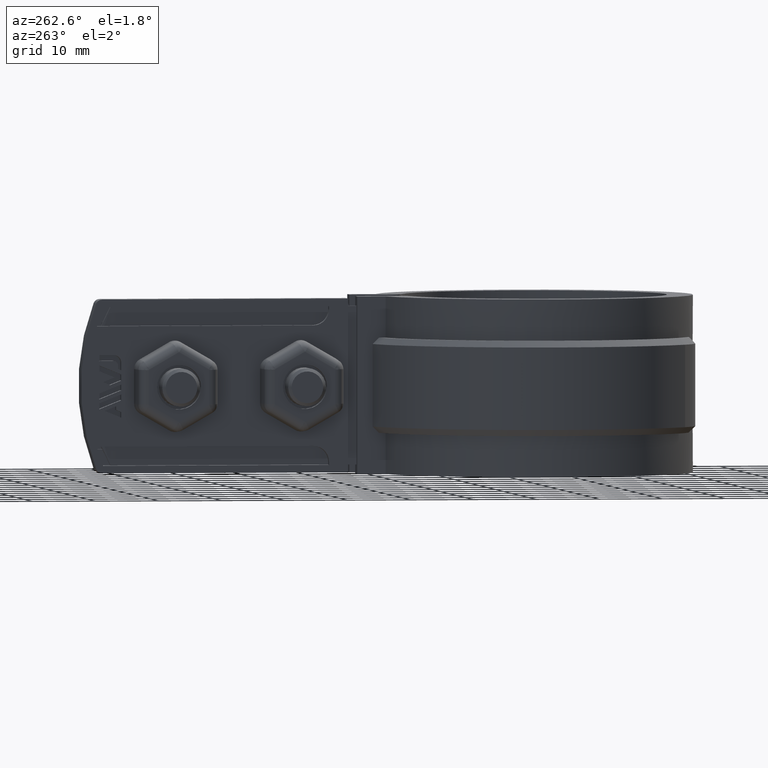
[diagram: clean part render]
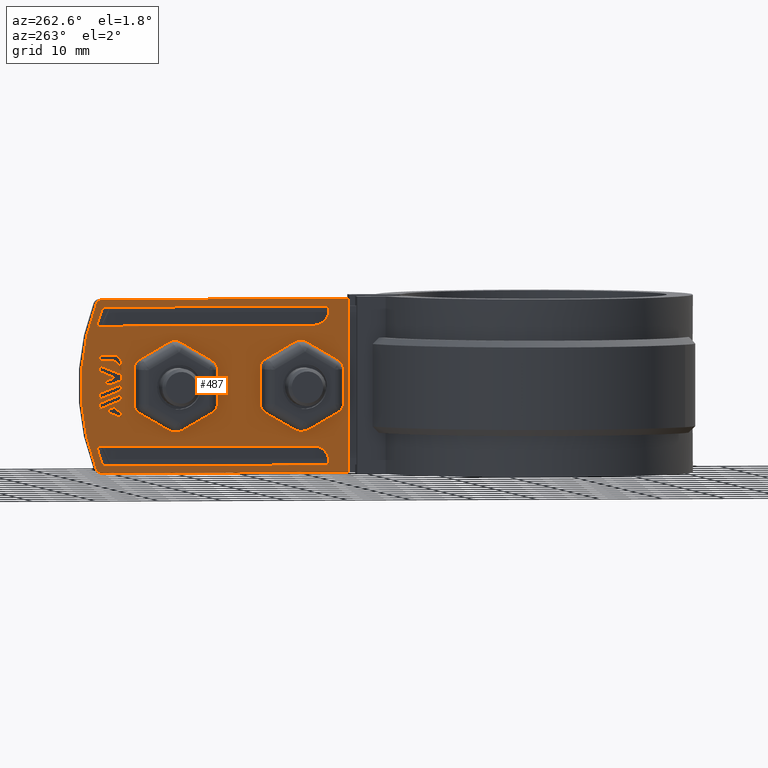
[diagram: same view with one face highlighted and labeled with its STEP entity id]
A machine part, auxiliary view. The second image highlights one B-rep face of the part: STEP entity #487.
In plain terms, the highlighted planar face has unit normal (-1, 0, -0).
Its self-contained STEP definition (entity closure, byte-faithful):
#487 = ADVANCED_FACE( '', ( #970, #971, #972, #973, #974, #975, #976, #977, #978, #979 ), #980, .T. );
#970 = FACE_BOUND( '', #2094, .T. );
#971 = FACE_BOUND( '', #2095, .T. );
#972 = FACE_BOUND( '', #2096, .T. );
#973 = FACE_BOUND( '', #2097, .T. );
#974 = FACE_BOUND( '', #2098, .T. );
#975 = FACE_OUTER_BOUND( '', #2099, .T. );
#976 = FACE_BOUND( '', #2100, .T. );
#977 = FACE_BOUND( '', #2101, .T. );
#978 = FACE_BOUND( '', #2102, .T. );
#979 = FACE_BOUND( '', #2103, .T. );
#980 = PLANE( '', #2104 );
#2094 = EDGE_LOOP( '', ( #4596, #4597, #4598, #4599, #4600 ) );
#2095 = EDGE_LOOP( '', ( #4601, #4602, #4603, #4604 ) );
#2096 = EDGE_LOOP( '', ( #4605, #4606, #4607, #4608, #4609 ) );
#2097 = EDGE_LOOP( '', ( #4610, #4611, #4612, #4613, #4614, #4615, #4616, #4617, #4618, #4619, #4620, #4621 ) );
#2098 = EDGE_LOOP( '', ( #4622, #4623, #4624, #4625, #4626, #4627, #4628, #4629, #4630, #4631, #4632, #4633 ) );
#2099 = EDGE_LOOP( '', ( #4634, #4635, #4636, #4637, #4638, #4639 ) );
#2100 = EDGE_LOOP( '', ( #4640, #4641, #4642, #4643, #4644 ) );
#2101 = EDGE_LOOP( '', ( #4645, #4646, #4647, #4648, #4649, #4650, #4651, #4652, #4653, #4654, #4655, #4656, #4657, #4658, #4659, #4660, #4661, #4662, #4663, #4664, #4665, #4666, #4667, #4668, #4669, #4670, #4671, #4672, #4673, #4674, #4675, #4676, #4677, #4678, #4679, #4680, #4681, #4682, #4683, #4684 ) );
#2102 = EDGE_LOOP( '', ( #4685, #4686, #4687, #4688, #4689, #4690, #4691 ) );
#2103 = EDGE_LOOP( '', ( #4692, #4693, #4694, #4695 ) );
#2104 = AXIS2_PLACEMENT_3D( '', #4696, #4697, #4698 );
#4596 = ORIENTED_EDGE( '', *, *, #6708, .T. );
#4597 = ORIENTED_EDGE( '', *, *, #6709, .T. );
#4598 = ORIENTED_EDGE( '', *, *, #6710, .T. );
#4599 = ORIENTED_EDGE( '', *, *, #6711, .T. );
#4600 = ORIENTED_EDGE( '', *, *, #6712, .T. );
#4601 = ORIENTED_EDGE( '', *, *, #6713, .T. );
#4602 = ORIENTED_EDGE( '', *, *, #6714, .T. );
#4603 = ORIENTED_EDGE( '', *, *, #6715, .T. );
#4604 = ORIENTED_EDGE( '', *, *, #6716, .T. );
#4605 = ORIENTED_EDGE( '', *, *, #6717, .T. );
#4606 = ORIENTED_EDGE( '', *, *, #6718, .F. );
#4607 = ORIENTED_EDGE( '', *, *, #6719, .T. );
#4608 = ORIENTED_EDGE( '', *, *, #6720, .T. );
#4609 = ORIENTED_EDGE( '', *, *, #6721, .T. );
#4610 = ORIENTED_EDGE( '', *, *, #6722, .F. );
#4611 = ORIENTED_EDGE( '', *, *, #6723, .F. );
#4612 = ORIENTED_EDGE( '', *, *, #6724, .F. );
#4613 = ORIENTED_EDGE( '', *, *, #6725, .F. );
#4614 = ORIENTED_EDGE( '', *, *, #6726, .F. );
#4615 = ORIENTED_EDGE( '', *, *, #6727, .F. );
#4616 = ORIENTED_EDGE( '', *, *, #6728, .F. );
#4617 = ORIENTED_EDGE( '', *, *, #6729, .F. );
#4618 = ORIENTED_EDGE( '', *, *, #6730, .F. );
#4619 = ORIENTED_EDGE( '', *, *, #6731, .F. );
#4620 = ORIENTED_EDGE( '', *, *, #6732, .F. );
#4621 = ORIENTED_EDGE( '', *, *, #6733, .F. );
#4622 = ORIENTED_EDGE( '', *, *, #6734, .F. );
#4623 = ORIENTED_EDGE( '', *, *, #6735, .F. );
#4624 = ORIENTED_EDGE( '', *, *, #6736, .F. );
#4625 = ORIENTED_EDGE( '', *, *, #6737, .F. );
#4626 = ORIENTED_EDGE( '', *, *, #6738, .F. );
#4627 = ORIENTED_EDGE( '', *, *, #6739, .F. );
#4628 = ORIENTED_EDGE( '', *, *, #6740, .F. );
#4629 = ORIENTED_EDGE( '', *, *, #6741, .F. );
#4630 = ORIENTED_EDGE( '', *, *, #6742, .F. );
#4631 = ORIENTED_EDGE( '', *, *, #6743, .F. );
#4632 = ORIENTED_EDGE( '', *, *, #6744, .F. );
#4633 = ORIENTED_EDGE( '', *, *, #6745, .F. );
#4634 = ORIENTED_EDGE( '', *, *, #6746, .T. );
#4635 = ORIENTED_EDGE( '', *, *, #6747, .T. );
#4636 = ORIENTED_EDGE( '', *, *, #6748, .T. );
#4637 = ORIENTED_EDGE( '', *, *, #6749, .T. );
#4638 = ORIENTED_EDGE( '', *, *, #6750, .T. );
#4639 = ORIENTED_EDGE( '', *, *, #6751, .T. );
#4640 = ORIENTED_EDGE( '', *, *, #6752, .T. );
#4641 = ORIENTED_EDGE( '', *, *, #6753, .T. );
#4642 = ORIENTED_EDGE( '', *, *, #6754, .T. );
#4643 = ORIENTED_EDGE( '', *, *, #6755, .T. );
#4644 = ORIENTED_EDGE( '', *, *, #6756, .F. );
#4645 = ORIENTED_EDGE( '', *, *, #6757, .T. );
#4646 = ORIENTED_EDGE( '', *, *, #6758, .T. );
#4647 = ORIENTED_EDGE( '', *, *, #6759, .T. );
#4648 = ORIENTED_EDGE( '', *, *, #6760, .T. );
#4649 = ORIENTED_EDGE( '', *, *, #6761, .T. );
#4650 = ORIENTED_EDGE( '', *, *, #6762, .T. );
#4651 = ORIENTED_EDGE( '', *, *, #6763, .T. );
#4652 = ORIENTED_EDGE( '', *, *, #6764, .T. );
#4653 = ORIENTED_EDGE( '', *, *, #6765, .T. );
#4654 = ORIENTED_EDGE( '', *, *, #6766, .T. );
#4655 = ORIENTED_EDGE( '', *, *, #6767, .T. );
#4656 = ORIENTED_EDGE( '', *, *, #6768, .T. );
#4657 = ORIENTED_EDGE( '', *, *, #6769, .T. );
#4658 = ORIENTED_EDGE( '', *, *, #6770, .T. );
#4659 = ORIENTED_EDGE( '', *, *, #6771, .T. );
#4660 = ORIENTED_EDGE( '', *, *, #6772, .T. );
#4661 = ORIENTED_EDGE( '', *, *, #6773, .T. );
#4662 = ORIENTED_EDGE( '', *, *, #6774, .T. );
#4663 = ORIENTED_EDGE( '', *, *, #6775, .T. );
#4664 = ORIENTED_EDGE( '', *, *, #6776, .T. );
#4665 = ORIENTED_EDGE( '', *, *, #6777, .T. );
#4666 = ORIENTED_EDGE( '', *, *, #6778, .T. );
#4667 = ORIENTED_EDGE( '', *, *, #6779, .T. );
#4668 = ORIENTED_EDGE( '', *, *, #6780, .T. );
#4669 = ORIENTED_EDGE( '', *, *, #6781, .T. );
#4670 = ORIENTED_EDGE( '', *, *, #6782, .T. );
#4671 = ORIENTED_EDGE( '', *, *, #6783, .T. );
#4672 = ORIENTED_EDGE( '', *, *, #6784, .T. );
#4673 = ORIENTED_EDGE( '', *, *, #6785, .T. );
#4674 = ORIENTED_EDGE( '', *, *, #6786, .T. );
#4675 = ORIENTED_EDGE( '', *, *, #6787, .T. );
#4676 = ORIENTED_EDGE( '', *, *, #6788, .T. );
#4677 = ORIENTED_EDGE( '', *, *, #6789, .T. );
#4678 = ORIENTED_EDGE( '', *, *, #6790, .T. );
#4679 = ORIENTED_EDGE( '', *, *, #6791, .T. );
#4680 = ORIENTED_EDGE( '', *, *, #6792, .T. );
#4681 = ORIENTED_EDGE( '', *, *, #6793, .T. );
#4682 = ORIENTED_EDGE( '', *, *, #6794, .T. );
#4683 = ORIENTED_EDGE( '', *, *, #6795, .T. );
#4684 = ORIENTED_EDGE( '', *, *, #6796, .T. );
#4685 = ORIENTED_EDGE( '', *, *, #6797, .T. );
#4686 = ORIENTED_EDGE( '', *, *, #6798, .T. );
#4687 = ORIENTED_EDGE( '', *, *, #6799, .T. );
#4688 = ORIENTED_EDGE( '', *, *, #6800, .T. );
#4689 = ORIENTED_EDGE( '', *, *, #6801, .T. );
#4690 = ORIENTED_EDGE( '', *, *, #6802, .T. );
#4691 = ORIENTED_EDGE( '', *, *, #6803, .T. );
#4692 = ORIENTED_EDGE( '', *, *, #6804, .T. );
#4693 = ORIENTED_EDGE( '', *, *, #6805, .T. );
#4694 = ORIENTED_EDGE( '', *, *, #6806, .T. );
#4695 = ORIENTED_EDGE( '', *, *, #6807, .T. );
#4696 = CARTESIAN_POINT( '', ( -6.69999999999994, 36.3954076850713, -12.5000000000053 ) );
#4697 = DIRECTION( '', ( -1.00000000000000, 6.81102793110547E-016, -3.55799675438348E-016 ) );
#4698 = DIRECTION( '', ( 6.81102793110547E-016, 1.00000000000000, 1.97370347591844E-018 ) );
#6708 = EDGE_CURVE( '', #7872, #7873, #7874, .T. );
#6709 = EDGE_CURVE( '', #7873, #7875, #7876, .T. );
#6710 = EDGE_CURVE( '', #7875, #7877, #7878, .T. );
#6711 = EDGE_CURVE( '', #7877, #7879, #7880, .T. );
#6712 = EDGE_CURVE( '', #7879, #7872, #7881, .T. );
#6713 = EDGE_CURVE( '', #7882, #7883, #7884, .T. );
#6714 = EDGE_CURVE( '', #7883, #7885, #7886, .T. );
#6715 = EDGE_CURVE( '', #7885, #7887, #7888, .T. );
#6716 = EDGE_CURVE( '', #7887, #7882, #7889, .T. );
#6717 = EDGE_CURVE( '', #7890, #7891, #7892, .F. );
#6718 = EDGE_CURVE( '', #7893, #7891, #7894, .T. );
#6719 = EDGE_CURVE( '', #7893, #7895, #7896, .T. );
#6720 = EDGE_CURVE( '', #7895, #7897, #7898, .T. );
#6721 = EDGE_CURVE( '', #7897, #7890, #7899, .T. );
#6722 = EDGE_CURVE( '', #7900, #7901, #7902, .F. );
#6723 = EDGE_CURVE( '', #7903, #7900, #7904, .T. );
#6724 = EDGE_CURVE( '', #7905, #7903, #7906, .F. );
#6725 = EDGE_CURVE( '', #7907, #7905, #7908, .T. );
#6726 = EDGE_CURVE( '', #7909, #7907, #7910, .F. );
#6727 = EDGE_CURVE( '', #7911, #7909, #7912, .T. );
#6728 = EDGE_CURVE( '', #7913, #7911, #7914, .F. );
#6729 = EDGE_CURVE( '', #7915, #7913, #7916, .T. );
#6730 = EDGE_CURVE( '', #7917, #7915, #7918, .F. );
#6731 = EDGE_CURVE( '', #7919, #7917, #7920, .T. );
#6732 = EDGE_CURVE( '', #7921, #7919, #7922, .F. );
#6733 = EDGE_CURVE( '', #7901, #7921, #7923, .T. );
#6734 = EDGE_CURVE( '', #7924, #7925, #7926, .F. );
#6735 = EDGE_CURVE( '', #7927, #7924, #7928, .T. );
#6736 = EDGE_CURVE( '', #7929, #7927, #7930, .F. );
#6737 = EDGE_CURVE( '', #7931, #7929, #7932, .T. );
#6738 = EDGE_CURVE( '', #7933, #7931, #7934, .F. );
#6739 = EDGE_CURVE( '', #7935, #7933, #7936, .T. );
#6740 = EDGE_CURVE( '', #7937, #7935, #7938, .F. );
#6741 = EDGE_CURVE( '', #7939, #7937, #7940, .T. );
#6742 = EDGE_CURVE( '', #7941, #7939, #7942, .F. );
#6743 = EDGE_CURVE( '', #7943, #7941, #7944, .T. );
#6744 = EDGE_CURVE( '', #7945, #7943, #7946, .F. );
#6745 = EDGE_CURVE( '', #7925, #7945, #7947, .T. );
#6746 = EDGE_CURVE( '', #7948, #7949, #7950, .T. );
#6747 = EDGE_CURVE( '', #7949, #7951, #7952, .T. );
#6748 = EDGE_CURVE( '', #7951, #7953, #7954, .T. );
#6749 = EDGE_CURVE( '', #7953, #7955, #7956, .T. );
#6750 = EDGE_CURVE( '', #7955, #7957, #7958, .T. );
#6751 = EDGE_CURVE( '', #7957, #7948, #7959, .T. );
#6752 = EDGE_CURVE( '', #7960, #7961, #7962, .F. );
#6753 = EDGE_CURVE( '', #7961, #7963, #7964, .T. );
#6754 = EDGE_CURVE( '', #7963, #7965, #7966, .T. );
#6755 = EDGE_CURVE( '', #7965, #7967, #7968, .T. );
#6756 = EDGE_CURVE( '', #7960, #7967, #7969, .T. );
#6757 = EDGE_CURVE( '', #7970, #7971, #7972, .T. );
#6758 = EDGE_CURVE( '', #7971, #7973, #7974, .T. );
#6759 = EDGE_CURVE( '', #7973, #7975, #7976, .T. );
#6760 = EDGE_CURVE( '', #7975, #7977, #7978, .T. );
#6761 = EDGE_CURVE( '', #7977, #7979, #7980, .T. );
#6762 = EDGE_CURVE( '', #7979, #7981, #7982, .T. );
#6763 = EDGE_CURVE( '', #7981, #7983, #7984, .T. );
#6764 = EDGE_CURVE( '', #7983, #7985, #7986, .T. );
#6765 = EDGE_CURVE( '', #7985, #7987, #7988, .T. );
#6766 = EDGE_CURVE( '', #7987, #7989, #7990, .T. );
#6767 = EDGE_CURVE( '', #7989, #7991, #7992, .T. );
#6768 = EDGE_CURVE( '', #7991, #7993, #7994, .T. );
#6769 = EDGE_CURVE( '', #7993, #7995, #7996, .T. );
#6770 = EDGE_CURVE( '', #7995, #7997, #7998, .T. );
#6771 = EDGE_CURVE( '', #7997, #7999, #8000, .T. );
#6772 = EDGE_CURVE( '', #7999, #8001, #8002, .T. );
#6773 = EDGE_CURVE( '', #8001, #8003, #8004, .T. );
#6774 = EDGE_CURVE( '', #8003, #8005, #8006, .T. );
#6775 = EDGE_CURVE( '', #8005, #8007, #8008, .T. );
#6776 = EDGE_CURVE( '', #8007, #8009, #8010, .T. );
#6777 = EDGE_CURVE( '', #8009, #8011, #8012, .T. );
#6778 = EDGE_CURVE( '', #8011, #8013, #8014, .T. );
#6779 = EDGE_CURVE( '', #8013, #8015, #8016, .T. );
#6780 = EDGE_CURVE( '', #8015, #8017, #8018, .T. );
#6781 = EDGE_CURVE( '', #8017, #8019, #8020, .T. );
#6782 = EDGE_CURVE( '', #8019, #8021, #8022, .T. );
#6783 = EDGE_CURVE( '', #8021, #8023, #8024, .T. );
#6784 = EDGE_CURVE( '', #8023, #8025, #8026, .T. );
#6785 = EDGE_CURVE( '', #8025, #8027, #8028, .T. );
#6786 = EDGE_CURVE( '', #8027, #8029, #8030, .T. );
#6787 = EDGE_CURVE( '', #8029, #8031, #8032, .T. );
#6788 = EDGE_CURVE( '', #8031, #8033, #8034, .T. );
#6789 = EDGE_CURVE( '', #8033, #8035, #8036, .T. );
#6790 = EDGE_CURVE( '', #8035, #8037, #8038, .T. );
#6791 = EDGE_CURVE( '', #8037, #8039, #8040, .T. );
#6792 = EDGE_CURVE( '', #8039, #8041, #8042, .T. );
#6793 = EDGE_CURVE( '', #8041, #8043, #8044, .T. );
#6794 = EDGE_CURVE( '', #8043, #8045, #8046, .T. );
#6795 = EDGE_CURVE( '', #8045, #8047, #8048, .T. );
#6796 = EDGE_CURVE( '', #8047, #7970, #8049, .F. );
#6797 = EDGE_CURVE( '', #8050, #8051, #8052, .T. );
#6798 = EDGE_CURVE( '', #8051, #8053, #8054, .T. );
#6799 = EDGE_CURVE( '', #8053, #8055, #8056, .T. );
#6800 = EDGE_CURVE( '', #8055, #8057, #8058, .T. );
#6801 = EDGE_CURVE( '', #8057, #8059, #8060, .T. );
#6802 = EDGE_CURVE( '', #8059, #8061, #8062, .T. );
#6803 = EDGE_CURVE( '', #8061, #8050, #8063, .T. );
#6804 = EDGE_CURVE( '', #8064, #8065, #8066, .T. );
#6805 = EDGE_CURVE( '', #8065, #8067, #8068, .T. );
#6806 = EDGE_CURVE( '', #8067, #8069, #8070, .T. );
#6807 = EDGE_CURVE( '', #8069, #8064, #8071, .T. );
#7872 = VERTEX_POINT( '', #11210 );
#7873 = VERTEX_POINT( '', #11211 );
#7874 = LINE( '', #11212, #11213 );
#7875 = VERTEX_POINT( '', #11214 );
#7876 = LINE( '', #11215, #11216 );
#7877 = VERTEX_POINT( '', #11217 );
#7878 = LINE( '', #11218, #11219 );
#7879 = VERTEX_POINT( '', #11220 );
#7880 = LINE( '', #11221, #11222 );
#7881 = LINE( '', #11223, #11224 );
#7882 = VERTEX_POINT( '', #11225 );
#7883 = VERTEX_POINT( '', #11226 );
#7884 = LINE( '', #11227, #11228 );
#7885 = VERTEX_POINT( '', #11229 );
#7886 = LINE( '', #11230, #11231 );
#7887 = VERTEX_POINT( '', #11232 );
#7888 = LINE( '', #11233, #11234 );
#7889 = LINE( '', #11235, #11236 );
#7890 = VERTEX_POINT( '', #11237 );
#7891 = VERTEX_POINT( '', #11238 );
#7892 = CIRCLE( '', #11239, 35.1999999999990 );
#7893 = VERTEX_POINT( '', #11240 );
#7894 = LINE( '', #11241, #11242 );
#7895 = VERTEX_POINT( '', #11243 );
#7896 = LINE( '', #11244, #11245 );
#7897 = VERTEX_POINT( '', #11246 );
#7898 = CIRCLE( '', #11247, 2.49999999999992 );
#7899 = LINE( '', #11248, #11249 );
#7900 = VERTEX_POINT( '', #11250 );
#7901 = VERTEX_POINT( '', #11251 );
#7902 = LINE( '', #11252, #11253 );
#7903 = VERTEX_POINT( '', #11254 );
#7904 = CIRCLE( '', #11255, 1.77252045227176 );
#7905 = VERTEX_POINT( '', #11256 );
#7906 = LINE( '', #11257, #11258 );
#7907 = VERTEX_POINT( '', #11259 );
#7908 = CIRCLE( '', #11260, 1.77252045227176 );
#7909 = VERTEX_POINT( '', #11261 );
#7910 = LINE( '', #11262, #11263 );
#7911 = VERTEX_POINT( '', #11264 );
#7912 = CIRCLE( '', #11265, 1.77252045227177 );
#7913 = VERTEX_POINT( '', #11266 );
#7914 = LINE( '', #11267, #11268 );
#7915 = VERTEX_POINT( '', #11269 );
#7916 = CIRCLE( '', #11270, 1.77252045227177 );
#7917 = VERTEX_POINT( '', #11271 );
#7918 = LINE( '', #11272, #11273 );
#7919 = VERTEX_POINT( '', #11274 );
#7920 = CIRCLE( '', #11275, 1.77252045227176 );
#7921 = VERTEX_POINT( '', #11276 );
#7922 = LINE( '', #11277, #11278 );
#7923 = CIRCLE( '', #11279, 1.77252045227177 );
#7924 = VERTEX_POINT( '', #11280 );
#7925 = VERTEX_POINT( '', #11281 );
#7926 = LINE( '', #11282, #11283 );
#7927 = VERTEX_POINT( '', #11284 );
#7928 = CIRCLE( '', #11285, 1.77252045227181 );
#7929 = VERTEX_POINT( '', #11286 );
#7930 = LINE( '', #11287, #11288 );
#7931 = VERTEX_POINT( '', #11289 );
#7932 = CIRCLE( '', #11290, 1.77252045227181 );
#7933 = VERTEX_POINT( '', #11291 );
#7934 = LINE( '', #11292, #11293 );
#7935 = VERTEX_POINT( '', #11294 );
#7936 = CIRCLE( '', #11295, 1.77252045227181 );
#7937 = VERTEX_POINT( '', #11296 );
#7938 = LINE( '', #11297, #11298 );
#7939 = VERTEX_POINT( '', #11299 );
#7940 = CIRCLE( '', #11300, 1.77252045227182 );
#7941 = VERTEX_POINT( '', #11301 );
#7942 = LINE( '', #11302, #11303 );
#7943 = VERTEX_POINT( '', #11304 );
#7944 = CIRCLE( '', #11305, 1.77252045227181 );
#7945 = VERTEX_POINT( '', #11306 );
#7946 = LINE( '', #11307, #11308 );
#7947 = CIRCLE( '', #11309, 1.77252045227182 );
#7948 = VERTEX_POINT( '', #11310 );
#7949 = VERTEX_POINT( '', #11311 );
#7950 = CIRCLE( '', #11312, 36.4000000000000 );
#7951 = VERTEX_POINT( '', #11313 );
#7952 = CIRCLE( '', #11314, 0.999999999999972 );
#7953 = VERTEX_POINT( '', #11315 );
#7954 = LINE( '', #11316, #11317 );
#7955 = VERTEX_POINT( '', #11318 );
#7956 = LINE( '', #11319, #11320 );
#7957 = VERTEX_POINT( '', #11321 );
#7958 = LINE( '', #11322, #11323 );
#7959 = CIRCLE( '', #11324, 0.999999999999972 );
#7960 = VERTEX_POINT( '', #11325 );
#7961 = VERTEX_POINT( '', #11326 );
#7962 = CIRCLE( '', #11327, 35.1999999999990 );
#7963 = VERTEX_POINT( '', #11328 );
#7964 = LINE( '', #11329, #11330 );
#7965 = VERTEX_POINT( '', #11331 );
#7966 = CIRCLE( '', #11332, 2.50000000000000 );
#7967 = VERTEX_POINT( '', #11333 );
#7968 = LINE( '', #11334, #11335 );
#7969 = LINE( '', #11336, #11337 );
#7970 = VERTEX_POINT( '', #11338 );
#7971 = VERTEX_POINT( '', #11339 );
#7972 = LINE( '', #11340, #11341 );
#7973 = VERTEX_POINT( '', #11342 );
#7974 = LINE( '', #11343, #11344 );
#7975 = VERTEX_POINT( '', #11345 );
#7976 = LINE( '', #11346, #11347 );
#7977 = VERTEX_POINT( '', #11348 );
#7978 = LINE( '', #11349, #11350 );
#7979 = VERTEX_POINT( '', #11351 );
#7980 = LINE( '', #11352, #11353 );
#7981 = VERTEX_POINT( '', #11354 );
#7982 = LINE( '', #11355, #11356 );
#7983 = VERTEX_POINT( '', #11357 );
#7984 = LINE( '', #11358, #11359 );
#7985 = VERTEX_POINT( '', #11360 );
#7986 = LINE( '', #11361, #11362 );
#7987 = VERTEX_POINT( '', #11363 );
#7988 = LINE( '', #11364, #11365 );
#7989 = VERTEX_POINT( '', #11366 );
#7990 = LINE( '', #11367, #11368 );
#7991 = VERTEX_POINT( '', #11369 );
#7992 = LINE( '', #11370, #11371 );
#7993 = VERTEX_POINT( '', #11372 );
#7994 = LINE( '', #11373, #11374 );
#7995 = VERTEX_POINT( '', #11375 );
#7996 = LINE( '', #11376, #11377 );
#7997 = VERTEX_POINT( '', #11378 );
#7998 = LINE( '', #11379, #11380 );
#7999 = VERTEX_POINT( '', #11381 );
#8000 = LINE( '', #11382, #11383 );
#8001 = VERTEX_POINT( '', #11384 );
#8002 = LINE( '', #11385, #11386 );
#8003 = VERTEX_POINT( '', #11387 );
#8004 = LINE( '', #11388, #11389 );
#8005 = VERTEX_POINT( '', #11390 );
#8006 = LINE( '', #11391, #11392 );
#8007 = VERTEX_POINT( '', #11393 );
#8008 = LINE( '', #11394, #11395 );
#8009 = VERTEX_POINT( '', #11396 );
#8010 = LINE( '', #11397, #11398 );
#8011 = VERTEX_POINT( '', #11399 );
#8012 = LINE( '', #11400, #11401 );
#8013 = VERTEX_POINT( '', #11402 );
#8014 = LINE( '', #11403, #11404 );
#8015 = VERTEX_POINT( '', #11405 );
#8016 = LINE( '', #11406, #11407 );
#8017 = VERTEX_POINT( '', #11408 );
#8018 = LINE( '', #11409, #11410 );
#8019 = VERTEX_POINT( '', #11411 );
#8020 = LINE( '', #11412, #11413 );
#8021 = VERTEX_POINT( '', #11414 );
#8022 = LINE( '', #11415, #11416 );
#8023 = VERTEX_POINT( '', #11417 );
#8024 = LINE( '', #11418, #11419 );
#8025 = VERTEX_POINT( '', #11420 );
#8026 = LINE( '', #11421, #11422 );
#8027 = VERTEX_POINT( '', #11423 );
#8028 = LINE( '', #11424, #11425 );
#8029 = VERTEX_POINT( '', #11426 );
#8030 = LINE( '', #11427, #11428 );
#8031 = VERTEX_POINT( '', #11429 );
#8032 = LINE( '', #11430, #11431 );
#8033 = VERTEX_POINT( '', #11432 );
#8034 = LINE( '', #11433, #11434 );
#8035 = VERTEX_POINT( '', #11435 );
#8036 = LINE( '', #11436, #11437 );
#8037 = VERTEX_POINT( '', #11438 );
#8038 = LINE( '', #11439, #11440 );
#8039 = VERTEX_POINT( '', #11441 );
#8040 = LINE( '', #11442, #11443 );
#8041 = VERTEX_POINT( '', #11444 );
#8042 = LINE( '', #11445, #11446 );
#8043 = VERTEX_POINT( '', #11447 );
#8044 = LINE( '', #11448, #11449 );
#8045 = VERTEX_POINT( '', #11450 );
#8046 = LINE( '', #11451, #11452 );
#8047 = VERTEX_POINT( '', #11453 );
#8048 = LINE( '', #11454, #11455 );
#8049 = CIRCLE( '', #11456, 1.16712912069190 );
#8050 = VERTEX_POINT( '', #11457 );
#8051 = VERTEX_POINT( '', #11458 );
#8052 = LINE( '', #11459, #11460 );
#8053 = VERTEX_POINT( '', #11461 );
#8054 = LINE( '', #11462, #11463 );
#8055 = VERTEX_POINT( '', #11464 );
#8056 = LINE( '', #11465, #11466 );
#8057 = VERTEX_POINT( '', #11467 );
#8058 = LINE( '', #11468, #11469 );
#8059 = VERTEX_POINT( '', #11470 );
#8060 = LINE( '', #11471, #11472 );
#8061 = VERTEX_POINT( '', #11473 );
#8062 = LINE( '', #11474, #11475 );
#8063 = LINE( '', #11476, #11477 );
#8064 = VERTEX_POINT( '', #11478 );
#8065 = VERTEX_POINT( '', #11479 );
#8066 = LINE( '', #11480, #11481 );
#8067 = VERTEX_POINT( '', #11482 );
#8068 = LINE( '', #11483, #11484 );
#8069 = VERTEX_POINT( '', #11485 );
#8070 = LINE( '', #11486, #11487 );
#8071 = LINE( '', #11488, #11489 );
#11210 = CARTESIAN_POINT( '', ( -6.69999999999992, 67.2071057018451, -15.6427310000053 ) );
#11211 = CARTESIAN_POINT( '', ( -6.69999999999992, 67.2071057018451, -16.2049013520053 ) );
#11212 = CARTESIAN_POINT( '', ( -6.69999999999992, 67.2071057018451, -12.5000000000053 ) );
#11213 = VECTOR( '', #13108, 1000.00000000002 );
#11214 = CARTESIAN_POINT( '', ( -6.69999999999992, 66.3990997978451, -16.5315944440053 ) );
#11215 = CARTESIAN_POINT( '', ( -6.69999999999993, 42.0121195697001, -26.3917426630159 ) );
#11216 = VECTOR( '', #13109, 999.999999999994 );
#11217 = CARTESIAN_POINT( '', ( -6.69999999999992, 66.3990997978451, -17.4353519200053 ) );
#11218 = CARTESIAN_POINT( '', ( -6.69999999999992, 66.3990997978451, -12.5000000000053 ) );
#11219 = VECTOR( '', #13110, 1000.00000000002 );
#11220 = CARTESIAN_POINT( '', ( -6.69999999999992, 69.0221369118450, -16.3757128080053 ) );
#11221 = CARTESIAN_POINT( '', ( -6.69999999999993, 42.3189279558409, -27.1631181690151 ) );
#11222 = VECTOR( '', #13111, 999.999999999995 );
#11223 = CARTESIAN_POINT( '', ( -6.69999999999994, 39.6245863425458, -4.50381239751235 ) );
#11224 = VECTOR( '', #13112, 999.999999999995 );
#11225 = CARTESIAN_POINT( '', ( -6.69999999999992, 69.8975386218450, -14.5449628860053 ) );
#11226 = CARTESIAN_POINT( '', ( -6.69999999999992, 69.8975386218450, -13.6409432240053 ) );
#11227 = CARTESIAN_POINT( '', ( -6.69999999999992, 69.8975386218450, -12.5000000000053 ) );
#11228 = VECTOR( '', #13113, 1000.00000000002 );
#11229 = CARTESIAN_POINT( '', ( -6.69999999999992, 66.3990997978451, -12.2273304500053 ) );
#11230 = CARTESIAN_POINT( '', ( -6.69999999999994, 40.7013193642792, -1.84363860576653 ) );
#11231 = VECTOR( '', #13114, 999.999999999995 );
#11232 = CARTESIAN_POINT( '', ( -6.69999999999992, 66.3990997978451, -13.1313508900053 ) );
#11233 = CARTESIAN_POINT( '', ( -6.69999999999992, 66.3990997978451, -12.5000000000053 ) );
#11234 = VECTOR( '', #13115, 1000.00000000002 );
#11235 = CARTESIAN_POINT( '', ( -6.69999999999994, 40.3872985371046, -2.62077856057143 ) );
#11236 = VECTOR( '', #13116, 999.999999999995 );
#11237 = CARTESIAN_POINT( '', ( -6.69999999999992, 70.2892124287104, -3.00000000000533 ) );
#11238 = CARTESIAN_POINT( '', ( -6.69999999999993, 69.3011822542854, -5.33342460733644E-012 ) );
#11239 = AXIS2_PLACEMENT_3D( '', #13117, #13118, #13119 );
#11240 = CARTESIAN_POINT( '', ( -6.69999999999995, 33.3954076850714, -5.32310086193637E-012 ) );
#11241 = CARTESIAN_POINT( '', ( -6.69999999999995, 30.3954076850714, -5.32099013714697E-012 ) );
#11242 = VECTOR( '', #13120, 999.999999999991 );
#11243 = CARTESIAN_POINT( '', ( -6.69999999999995, 33.3954076850714, -0.500000000005322 ) );
#11244 = CARTESIAN_POINT( '', ( -6.69999999999995, 33.3954076850714, 1.19999999999467 ) );
#11245 = VECTOR( '', #13121, 1000.00000000002 );
#11246 = CARTESIAN_POINT( '', ( -6.69999999999995, 35.8954076850713, -3.00000000000532 ) );
#11247 = AXIS2_PLACEMENT_3D( '', #13122, #13123, #13124 );
#11248 = CARTESIAN_POINT( '', ( -6.69999999999995, 35.8954076850713, -3.00000000000533 ) );
#11249 = VECTOR( '', #13125, 999.999999999991 );
#11250 = CARTESIAN_POINT( '', ( -6.69999999999992, 64.3679281373422, -9.78645373481408 ) );
#11251 = CARTESIAN_POINT( '', ( -6.69999999999992, 64.3679281373422, -15.2135462651966 ) );
#11252 = CARTESIAN_POINT( '', ( -6.69999999999992, 64.3679281373422, -15.2135462651966 ) );
#11253 = VECTOR( '', #13126, 1000.00000000002 );
#11254 = CARTESIAN_POINT( '', ( -6.69999999999993, 63.4816679112064, -8.25140599441920 ) );
#11255 = AXIS2_PLACEMENT_3D( '', #13127, #13128, #13129 );
#11256 = CARTESIAN_POINT( '', ( -6.69999999999993, 58.7816679112065, -5.53785972922798 ) );
#11257 = CARTESIAN_POINT( '', ( -6.69999999999992, 65.8316679112063, -9.60817912701482 ) );
#11258 = VECTOR( '', #13130, 999.999999999998 );
#11259 = CARTESIAN_POINT( '', ( -6.69999999999993, 57.0091474589347, -5.53785972922797 ) );
#11260 = AXIS2_PLACEMENT_3D( '', #13131, #13132, #13133 );
#11261 = CARTESIAN_POINT( '', ( -6.69999999999993, 52.3091474589349, -8.25140599441920 ) );
#11262 = CARTESIAN_POINT( '', ( -6.69999999999993, 57.0091474589347, -5.53785972922796 ) );
#11263 = VECTOR( '', #13134, 999.999999999998 );
#11264 = CARTESIAN_POINT( '', ( -6.69999999999993, 51.4228872327990, -9.78645373481408 ) );
#11265 = AXIS2_PLACEMENT_3D( '', #13135, #13136, #13137 );
#11266 = CARTESIAN_POINT( '', ( -6.69999999999993, 51.4228872327990, -15.2135462651966 ) );
#11267 = CARTESIAN_POINT( '', ( -6.69999999999993, 51.4228872327990, -15.2135462651966 ) );
#11268 = VECTOR( '', #13138, 1000.00000000002 );
#11269 = CARTESIAN_POINT( '', ( -6.69999999999993, 52.3091474589349, -16.7485940055914 ) );
#11270 = AXIS2_PLACEMENT_3D( '', #13139, #13140, #13141 );
#11271 = CARTESIAN_POINT( '', ( -6.69999999999993, 57.0091474589347, -19.4621402707827 ) );
#11272 = CARTESIAN_POINT( '', ( -6.69999999999992, 59.3591474589347, -20.8189134033783 ) );
#11273 = VECTOR( '', #13142, 999.999999999998 );
#11274 = CARTESIAN_POINT( '', ( -6.69999999999992, 58.7816679112065, -19.4621402707827 ) );
#11275 = AXIS2_PLACEMENT_3D( '', #13143, #13144, #13145 );
#11276 = CARTESIAN_POINT( '', ( -6.69999999999992, 63.4816679112064, -16.7485940055914 ) );
#11277 = CARTESIAN_POINT( '', ( -6.69999999999992, 63.4816679112064, -16.7485940055914 ) );
#11278 = VECTOR( '', #13146, 999.999999999998 );
#11279 = AXIS2_PLACEMENT_3D( '', #13147, #13148, #13149 );
#11280 = CARTESIAN_POINT( '', ( -6.69999999999994, 44.3679281373428, -9.78645373481408 ) );
#11281 = CARTESIAN_POINT( '', ( -6.69999999999993, 44.3679281373428, -15.2135462651966 ) );
#11282 = CARTESIAN_POINT( '', ( -6.69999999999993, 44.3679281373428, -15.2135462651966 ) );
#11283 = VECTOR( '', #13150, 1000.00000000002 );
#11284 = CARTESIAN_POINT( '', ( -6.69999999999994, 43.4816679112069, -8.25140599441921 ) );
#11285 = AXIS2_PLACEMENT_3D( '', #13151, #13152, #13153 );
#11286 = CARTESIAN_POINT( '', ( -6.69999999999994, 38.7816679112071, -5.53785972922797 ) );
#11287 = CARTESIAN_POINT( '', ( -6.69999999999994, 45.8316679112069, -9.60817912701482 ) );
#11288 = VECTOR( '', #13154, 999.999999999998 );
#11289 = CARTESIAN_POINT( '', ( -6.69999999999994, 37.0091474589353, -5.53785972922797 ) );
#11290 = AXIS2_PLACEMENT_3D( '', #13155, #13156, #13157 );
#11291 = CARTESIAN_POINT( '', ( -6.69999999999995, 32.3091474589354, -8.25140599441921 ) );
#11292 = CARTESIAN_POINT( '', ( -6.69999999999994, 37.0091474589353, -5.53785972922797 ) );
#11293 = VECTOR( '', #13158, 999.999999999998 );
#11294 = CARTESIAN_POINT( '', ( -6.69999999999995, 31.4228872327996, -9.78645373481408 ) );
#11295 = AXIS2_PLACEMENT_3D( '', #13159, #13160, #13161 );
#11296 = CARTESIAN_POINT( '', ( -6.69999999999994, 31.4228872327995, -15.2135462651966 ) );
#11297 = CARTESIAN_POINT( '', ( -6.69999999999994, 31.4228872327995, -15.2135462651966 ) );
#11298 = VECTOR( '', #13162, 1000.00000000002 );
#11299 = CARTESIAN_POINT( '', ( -6.69999999999994, 32.3091474589354, -16.7485940055914 ) );
#11300 = AXIS2_PLACEMENT_3D( '', #13163, #13164, #13165 );
#11301 = CARTESIAN_POINT( '', ( -6.69999999999994, 37.0091474589353, -19.4621402707827 ) );
#11302 = CARTESIAN_POINT( '', ( -6.69999999999994, 39.3591474589352, -20.8189134033783 ) );
#11303 = VECTOR( '', #13166, 999.999999999998 );
#11304 = CARTESIAN_POINT( '', ( -6.69999999999994, 38.7816679112071, -19.4621402707827 ) );
#11305 = AXIS2_PLACEMENT_3D( '', #13167, #13168, #13169 );
#11306 = CARTESIAN_POINT( '', ( -6.69999999999994, 43.4816679112069, -16.7485940055914 ) );
#11307 = CARTESIAN_POINT( '', ( -6.69999999999993, 43.4816679112069, -16.7485940055914 ) );
#11308 = VECTOR( '', #13170, 999.999999999998 );
#11309 = AXIS2_PLACEMENT_3D( '', #13171, #13172, #13173 );
#11310 = CARTESIAN_POINT( '', ( -6.69999999999992, 70.3722948878708, 0.558757062141559 ) );
#11311 = CARTESIAN_POINT( '', ( -6.69999999999991, 70.3722948878708, -25.5587570621522 ) );
#11312 = AXIS2_PLACEMENT_3D( '', #13174, #13175, #13176 );
#11313 = CARTESIAN_POINT( '', ( -6.69999999999991, 69.4388639207610, -26.2000000000053 ) );
#11314 = AXIS2_PLACEMENT_3D( '', #13177, #13178, #13179 );
#11315 = CARTESIAN_POINT( '', ( -6.69999999999994, 30.3954076850714, -26.2000000000053 ) );
#11316 = CARTESIAN_POINT( '', ( -6.69999999999994, 33.3954076850714, -26.2000000000053 ) );
#11317 = VECTOR( '', #13180, 999.999999999991 );
#11318 = CARTESIAN_POINT( '', ( -6.69999999999995, 30.3954076850715, 1.19999999999467 ) );
#11319 = CARTESIAN_POINT( '', ( -6.69999999999994, 30.3954076850714, -26.2000000000053 ) );
#11320 = VECTOR( '', #13181, 1000.00000000002 );
#11321 = CARTESIAN_POINT( '', ( -6.69999999999992, 69.4388639207610, 1.19999999999467 ) );
#11322 = CARTESIAN_POINT( '', ( -6.69999999999995, 30.3954076850715, 1.19999999999467 ) );
#11323 = VECTOR( '', #13182, 999.999999999991 );
#11324 = AXIS2_PLACEMENT_3D( '', #13183, #13184, #13185 );
#11325 = CARTESIAN_POINT( '', ( -6.69999999999991, 69.3011822542854, -25.0000000000053 ) );
#11326 = CARTESIAN_POINT( '', ( -6.69999999999992, 70.2892124287104, -22.0000000000053 ) );
#11327 = AXIS2_PLACEMENT_3D( '', #13186, #13187, #13188 );
#11328 = CARTESIAN_POINT( '', ( -6.69999999999994, 35.8954076850713, -22.0000000000053 ) );
#11329 = CARTESIAN_POINT( '', ( -6.69999999999991, 71.1193187551096, -22.0000000000053 ) );
#11330 = VECTOR( '', #13189, 999.999999999991 );
#11331 = CARTESIAN_POINT( '', ( -6.69999999999994, 33.3954076850714, -24.5000000000053 ) );
#11332 = AXIS2_PLACEMENT_3D( '', #13190, #13191, #13192 );
#11333 = CARTESIAN_POINT( '', ( -6.69999999999994, 33.3954076850714, -25.0000000000053 ) );
#11334 = CARTESIAN_POINT( '', ( -6.69999999999994, 33.3954076850714, -24.5000000000053 ) );
#11335 = VECTOR( '', #13193, 1000.00000000002 );
#11336 = CARTESIAN_POINT( '', ( -6.69999999999992, 69.0871497616254, -25.0000000000053 ) );
#11337 = VECTOR( '', #13194, 999.999999999991 );
#11338 = CARTESIAN_POINT( '', ( -6.69999999999992, 66.3990998049837, -8.74297971175397 ) );
#11339 = CARTESIAN_POINT( '', ( -6.69999999999992, 66.3990997978451, -9.97073444800532 ) );
#11340 = CARTESIAN_POINT( '', ( -6.69999999999992, 66.3990997831391, -12.5000001744568 ) );
#11341 = VECTOR( '', #13195, 1000.00000000002 );
#11342 = CARTESIAN_POINT( '', ( -6.69999999999992, 66.9078394438451, -9.76519073800533 ) );
#11343 = CARTESIAN_POINT( '', ( -6.69999999999994, 39.7273266146418, -20.7468067581907 ) );
#11344 = VECTOR( '', #13196, 999.999999999995 );
#11345 = CARTESIAN_POINT( '', ( -6.69999999999992, 66.9078394438451, -9.26826424400533 ) );
#11346 = CARTESIAN_POINT( '', ( -6.69999999999992, 66.9078394438451, -12.5000000000053 ) );
#11347 = VECTOR( '', #13197, 1000.00000000002 );
#11348 = CARTESIAN_POINT( '', ( -6.69999999999992, 66.9085365318451, -9.23547076600533 ) );
#11349 = CARTESIAN_POINT( '', ( -6.69999999999992, 66.8253927510655, -13.1468474441736 ) );
#11350 = VECTOR( '', #13198, 1000.00000000002 );
#11351 = CARTESIAN_POINT( '', ( -6.69999999999992, 66.9106200158451, -9.20269440400534 ) );
#11352 = CARTESIAN_POINT( '', ( -6.69999999999992, 66.5790575956561, -14.4186739410139 ) );
#11353 = VECTOR( '', #13199, 1000.00000000002 );
#11354 = CARTESIAN_POINT( '', ( -6.69999999999992, 66.9140790038451, -9.17002851800533 ) );
#11355 = CARTESIAN_POINT( '', ( -6.69999999999992, 66.2269769111656, -15.6588624283507 ) );
#11356 = VECTOR( '', #13200, 1000.00000000002 );
#11357 = CARTESIAN_POINT( '', ( -6.69999999999992, 66.9189018258451, -9.13756569000533 ) );
#11358 = CARTESIAN_POINT( '', ( -6.69999999999992, 65.7710032940089, -16.8641690356123 ) );
#11359 = VECTOR( '', #13201, 1000.00000000002 );
#11360 = CARTESIAN_POINT( '', ( -6.69999999999992, 66.9250768118451, -9.10540005800532 ) );
#11361 = CARTESIAN_POINT( '', ( -6.69999999999992, 65.2114071356713, -18.0319414580001 ) );
#11362 = VECTOR( '', #13202, 1000.00000000002 );
#11363 = CARTESIAN_POINT( '', ( -6.69999999999992, 66.9339786878451, -9.06837192600533 ) );
#11364 = CARTESIAN_POINT( '', ( -6.69999999999992, 64.4854858051173, -19.2530922773868 ) );
#11365 = VECTOR( '', #13203, 1000.00000000002 );
#11366 = CARTESIAN_POINT( '', ( -6.69999999999992, 66.9447213118451, -9.03175224400532 ) );
#11367 = CARTESIAN_POINT( '', ( -6.69999999999992, 63.5872136708325, -20.4768947088673 ) );
#11368 = VECTOR( '', #13204, 1000.00000000002 );
#11369 = CARTESIAN_POINT( '', ( -6.69999999999992, 66.9572478898451, -8.99566860400532 ) );
#11370 = CARTESIAN_POINT( '', ( -6.69999999999992, 62.5845039122045, -21.5916480886904 ) );
#11371 = VECTOR( '', #13205, 1000.00000000002 );
#11372 = CARTESIAN_POINT( '', ( -6.69999999999992, 66.9715008498451, -8.96024704200532 ) );
#11373 = CARTESIAN_POINT( '', ( -6.69999999999992, 61.4849192907987, -22.5955402626285 ) );
#11374 = VECTOR( '', #13206, 1000.00000000002 );
#11375 = CARTESIAN_POINT( '', ( -6.69999999999992, 66.9874226198451, -8.92561592800532 ) );
#11376 = CARTESIAN_POINT( '', ( -6.69999999999992, 60.2928174577621, -23.4869137330296 ) );
#11377 = VECTOR( '', #13207, 1000.00000000001 );
#11378 = CARTESIAN_POINT( '', ( -6.69999999999992, 67.0049556278451, -8.89190129800533 ) );
#11379 = CARTESIAN_POINT( '', ( -6.69999999999992, 59.0120714975021, -24.2616046077548 ) );
#11380 = VECTOR( '', #13208, 1000.00000000001 );
#11381 = CARTESIAN_POINT( '', ( -6.69999999999992, 67.0240415238451, -8.85923152200533 ) );
#11382 = CARTESIAN_POINT( '', ( -6.69999999999992, 57.6447415767510, -24.9139993101313 ) );
#11383 = VECTOR( '', #13209, 1000.00000000001 );
#11384 = CARTESIAN_POINT( '', ( -6.69999999999992, 67.0448102338451, -8.82742610400532 ) );
#11385 = CARTESIAN_POINT( '', ( -6.69999999999992, 56.2013844457408, -25.4331608724435 ) );
#11386 = VECTOR( '', #13210, 1000.00000000001 );
#11387 = CARTESIAN_POINT( '', ( -6.69999999999992, 67.0671606178451, -8.79662508400533 ) );
#11388 = CARTESIAN_POINT( '', ( -6.69999999999992, 54.7272281405582, -25.8022616328721 ) );
#11389 = VECTOR( '', #13211, 1000.00000000001 );
#11390 = CARTESIAN_POINT( '', ( -6.69999999999992, 67.0910039838451, -8.76692337800533 ) );
#11391 = CARTESIAN_POINT( '', ( -6.69999999999993, 53.2394897302745, -26.0217691919079 ) );
#11392 = VECTOR( '', #13212, 1000.00000000001 );
#11393 = CARTESIAN_POINT( '', ( -6.69999999999992, 67.1162516398451, -8.73841356800533 ) );
#11394 = CARTESIAN_POINT( '', ( -6.69999999999993, 51.7462247369025, -26.0943434292877 ) );
#11395 = VECTOR( '', #13213, 1000.00000000001 );
#11396 = CARTESIAN_POINT( '', ( -6.69999999999992, 67.1428156718451, -8.71119057000533 ) );
#11397 = CARTESIAN_POINT( '', ( -6.69999999999993, 50.2519175873680, -26.0210961134075 ) );
#11398 = VECTOR( '', #13214, 1000.00000000001 );
#11399 = CARTESIAN_POINT( '', ( -6.69999999999992, 67.1706058318451, -8.68534852200533 ) );
#11400 = CARTESIAN_POINT( '', ( -6.69999999999993, 48.7643160654294, -25.8013429475730 ) );
#11401 = VECTOR( '', #13215, 1000.00000000000 );
#11402 = CARTESIAN_POINT( '', ( -6.69999999999992, 67.1995349838451, -8.66098078400533 ) );
#11403 = CARTESIAN_POINT( '', ( -6.69999999999993, 47.2886766690314, -25.4323876600314 ) );
#11404 = VECTOR( '', #13216, 1000.00000000000 );
#11405 = CARTESIAN_POINT( '', ( -6.69999999999992, 67.2291923438451, -8.63839777800532 ) );
#11406 = CARTESIAN_POINT( '', ( -6.69999999999993, 45.8507423837355, -24.9173134913401 ) );
#11407 = VECTOR( '', #13217, 1000.00000000000 );
#11408 = CARTESIAN_POINT( '', ( -6.69999999999992, 67.2599925858451, -8.61721361600532 ) );
#11409 = CARTESIAN_POINT( '', ( -6.69999999999993, 44.4943334447755, -24.2752532924857 ) );
#11410 = VECTOR( '', #13218, 1000.00000000000 );
#11411 = CARTESIAN_POINT( '', ( -6.69999999999992, 67.2918299018451, -8.59749131600533 ) );
#11412 = CARTESIAN_POINT( '', ( -6.69999999999993, 43.2166392803966, -23.5113782778742 ) );
#11413 = VECTOR( '', #13219, 999.999999999999 );
#11414 = CARTESIAN_POINT( '', ( -6.69999999999992, 67.3245969278451, -8.57929156200532 ) );
#11415 = CARTESIAN_POINT( '', ( -6.69999999999993, 42.0232354618653, -22.6323995415392 ) );
#11416 = VECTOR( '', #13220, 999.999999999997 );
#11417 = CARTESIAN_POINT( '', ( -6.69999999999992, 67.3581878558451, -8.56267426000533 ) );
#11418 = CARTESIAN_POINT( '', ( -6.69999999999994, 40.9181472274635, -21.6424599692220 ) );
#11419 = VECTOR( '', #13221, 999.999999999996 );
#11420 = CARTESIAN_POINT( '', ( -6.69999999999992, 67.3924968778451, -8.54770242800533 ) );
#11421 = CARTESIAN_POINT( '', ( -6.69999999999994, 39.9050967026317, -20.5427029715996 ) );
#11422 = VECTOR( '', #13222, 999.999999999995 );
#11423 = CARTESIAN_POINT( '', ( -6.69999999999992, 67.4274174078451, -8.53443675000532 ) );
#11424 = CARTESIAN_POINT( '', ( -6.69999999999994, 38.9924236307437, -19.3363767944164 ) );
#11425 = VECTOR( '', #13223, 999.999999999994 );
#11426 = CARTESIAN_POINT( '', ( -6.69999999999992, 67.4630023498451, -8.52287956000533 ) );
#11427 = CARTESIAN_POINT( '', ( -6.69999999999994, 38.1913187021896, -18.0296650294239 ) );
#11428 = VECTOR( '', #13224, 999.999999999993 );
#11429 = CARTESIAN_POINT( '', ( -6.69999999999992, 67.4992447018451, -8.51302541200534 ) );
#11430 = CARTESIAN_POINT( '', ( -6.69999999999994, 37.5271262155470, -16.6623224398989 ) );
#11431 = VECTOR( '', #13225, 999.999999999993 );
#11432 = CARTESIAN_POINT( '', ( -6.69999999999992, 67.5360168718451, -8.50490309200532 ) );
#11433 = CARTESIAN_POINT( '', ( -6.69999999999994, 37.0026531012861, -15.2491814748478 ) );
#11434 = VECTOR( '', #13226, 999.999999999992 );
#11435 = CARTESIAN_POINT( '', ( -6.69999999999992, 67.5731904898451, -8.49853905200533 ) );
#11436 = CARTESIAN_POINT( '', ( -6.69999999999994, 36.6176328284241, -13.7980610726886 ) );
#11437 = VECTOR( '', #13227, 999.999999999991 );
#11438 = CARTESIAN_POINT( '', ( -6.69999999999992, 67.6106371858451, -8.49395974400533 ) );
#11439 = CARTESIAN_POINT( '', ( -6.69999999999994, 36.3726633485838, -12.3140111444468 ) );
#11440 = VECTOR( '', #13228, 999.999999999991 );
#11441 = CARTESIAN_POINT( '', ( -6.69999999999992, 67.6482293678451, -8.49119239800533 ) );
#11442 = CARTESIAN_POINT( '', ( -6.69999999999994, 36.2703413270167, -10.8010735578242 ) );
#11443 = VECTOR( '', #13229, 999.999999999991 );
#11444 = CARTESIAN_POINT( '', ( -6.69999999999992, 67.6858394438451, -8.49026424400533 ) );
#11445 = CARTESIAN_POINT( '', ( -6.69999999999994, 36.3155592213281, -9.26443048258360 ) );
#11446 = VECTOR( '', #13230, 999.999999999991 );
#11447 = CARTESIAN_POINT( '', ( -6.69999999999992, 69.8975386218450, -8.49026424400533 ) );
#11448 = CARTESIAN_POINT( '', ( -6.69999999999994, 36.3954076850713, -8.49026424400533 ) );
#11449 = VECTOR( '', #13231, 999.999999999991 );
#11450 = CARTESIAN_POINT( '', ( -6.69999999999992, 69.8975386218450, -7.57597965000533 ) );
#11451 = CARTESIAN_POINT( '', ( -6.69999999999992, 69.8975386218450, -12.5000000000053 ) );
#11452 = VECTOR( '', #13232, 1000.00000000002 );
#11453 = CARTESIAN_POINT( '', ( -6.69999999999992, 67.5660997978451, -7.57597965000533 ) );
#11454 = CARTESIAN_POINT( '', ( -6.69999999999994, 36.3954076850713, -7.57597965000533 ) );
#11455 = VECTOR( '', #13233, 999.999999999991 );
#11456 = AXIS2_PLACEMENT_3D( '', #13234, #13235, #13236 );
#11457 = CARTESIAN_POINT( '', ( -6.69999999999992, 67.4542210638451, -11.0991324220053 ) );
#11458 = CARTESIAN_POINT( '', ( -6.69999999999992, 69.8975386218450, -10.1118519780053 ) );
#11459 = CARTESIAN_POINT( '', ( -6.69999999999994, 40.2681718683298, -22.0843007774137 ) );
#11460 = VECTOR( '', #13237, 999.999999999994 );
#11461 = CARTESIAN_POINT( '', ( -6.69999999999992, 69.8975386218450, -9.20781986800533 ) );
#11462 = CARTESIAN_POINT( '', ( -6.69999999999992, 69.8975386218450, -12.5000000000053 ) );
#11463 = VECTOR( '', #13238, 1000.00000000002 );
#11464 = CARTESIAN_POINT( '', ( -6.69999999999992, 66.3990997978451, -10.6212101340053 ) );
#11465 = CARTESIAN_POINT( '', ( -6.69999999999994, 39.9529313024956, -21.3056208111045 ) );
#11466 = VECTOR( '', #13239, 999.999999999995 );
#11467 = CARTESIAN_POINT( '', ( -6.69999999999992, 66.3990997978451, -11.5768555420053 ) );
#11468 = CARTESIAN_POINT( '', ( -6.69999999999992, 66.3990997978451, -12.5000000000053 ) );
#11469 = VECTOR( '', #13240, 1000.00000000002 );
#11470 = CARTESIAN_POINT( '', ( -6.69999999999992, 68.1814565638451, -12.2970999340053 ) );
#11471 = CARTESIAN_POINT( '', ( -6.69999999999994, 40.9277658157768, -1.28397489807248 ) );
#11472 = VECTOR( '', #13241, 999.999999999995 );
#11473 = CARTESIAN_POINT( '', ( -6.69999999999992, 69.3004314018450, -11.8450842680053 ) );
#11474 = CARTESIAN_POINT( '', ( -6.69999999999994, 40.7841340941140, -23.3643898695924 ) );
#11475 = VECTOR( '', #13242, 999.999999999995 );
#11476 = CARTESIAN_POINT( '', ( -6.69999999999994, 41.2408185359868, -0.507741179564210 ) );
#11477 = VECTOR( '', #13243, 999.999999999995 );
#11478 = CARTESIAN_POINT( '', ( -6.69999999999992, 69.8975386218450, -15.1954619120053 ) );
#11479 = CARTESIAN_POINT( '', ( -6.69999999999992, 66.3990997978451, -13.7818491380053 ) );
#11480 = CARTESIAN_POINT( '', ( -6.69999999999994, 40.1613479618416, -3.17997126551764 ) );
#11481 = VECTOR( '', #13244, 999.999999999995 );
#11482 = CARTESIAN_POINT( '', ( -6.69999999999992, 66.3990997978451, -14.6858050040053 ) );
#11483 = CARTESIAN_POINT( '', ( -6.69999999999992, 66.3990997978451, -12.5000000000053 ) );
#11484 = VECTOR( '', #13245, 1000.00000000002 );
#11485 = CARTESIAN_POINT( '', ( -6.69999999999992, 69.8975386218450, -16.0992186100053 ) );
#11486 = CARTESIAN_POINT( '', ( -6.69999999999994, 39.8464103424849, -3.95818207270330 ) );
#11487 = VECTOR( '', #13246, 999.999999999995 );
#11488 = CARTESIAN_POINT( '', ( -6.69999999999992, 69.8975386218450, -12.5000000000053 ) );
#11489 = VECTOR( '', #13247, 1000.00000000002 );
#13108 = DIRECTION( '', ( 3.55799675438348E-016, -6.41034526210932E-017, -1.00000000000000 ) );
#13109 = DIRECTION( '', ( -4.98074767246778E-016, -0.927089170438192, -0.374840859640762 ) );
#13110 = DIRECTION( '', ( 3.55799675438348E-016, -6.41034526210932E-017, -1.00000000000000 ) );
#13111 = DIRECTION( '', ( 4.98248814336127E-016, 0.927200633736571, 0.374565060835233 ) );
#13112 = DIRECTION( '', ( -7.64780426501087E-016, -0.927243888575586, 0.374457969736559 ) );
#13113 = DIRECTION( '', ( -3.55799675438348E-016, 6.41034526210932E-017, 1.00000000000000 ) );
#13114 = DIRECTION( '', ( -7.64795203905318E-016, -0.927169886208871, 0.374641164459313 ) );
#13115 = DIRECTION( '', ( 3.55799675438348E-016, -6.41034526210932E-017, -1.00000000000000 ) );
#13116 = DIRECTION( '', ( 7.64795189621401E-016, 0.927169957829706, -0.374640987210505 ) );
#13117 = CARTESIAN_POINT( '', ( -6.69999999999994, 36.3954076850713, -12.5000000000053 ) );
#13118 = DIRECTION( '', ( -1.00000000000000, 6.81102793110547E-016, -3.55799675438348E-016 ) );
#13119 = DIRECTION( '', ( -6.81102793110547E-016, -1.00000000000000, 1.25333771139391E-016 ) );
#13120 = DIRECTION( '', ( 6.66766614912084E-016, 1.00000000000000, -6.98226199081313E-017 ) );
#13121 = DIRECTION( '', ( 3.52801195032781E-016, -2.42032289536751E-016, -1.00000000000000 ) );
#13122 = CARTESIAN_POINT( '', ( -6.69999999999995, 35.8954076850713, -0.500000000005329 ) );
#13123 = DIRECTION( '', ( 1.00000000000000, -6.57009411499758E-016, 3.55799675438348E-016 ) );
#13124 = DIRECTION( '', ( -6.57009411499759E-016, -1.00000000000000, 1.38580507730557E-015 ) );
#13125 = DIRECTION( '', ( 6.66766614912084E-016, 1.00000000000000, 1.97370347591844E-018 ) );
#13126 = DIRECTION( '', ( -3.52801195032781E-016, -4.29777741173172E-016, 1.00000000000000 ) );
#13127 = CARTESIAN_POINT( '', ( -6.69999999999993, 62.5954076850705, -9.78645373481408 ) );
#13128 = DIRECTION( '', ( -1.00000000000000, 6.46613620079360E-016, -3.52801195032781E-016 ) );
#13129 = DIRECTION( '', ( -6.46613620079360E-016, -1.00000000000000, 1.25333771139391E-016 ) );
#13130 = DIRECTION( '', ( -7.36384418938136E-016, -0.866025403784433, 0.500000000000010 ) );
#13131 = CARTESIAN_POINT( '', ( -6.69999999999993, 57.8954076850706, -7.07290746962284 ) );
#13132 = DIRECTION( '', ( -1.00000000000000, 6.46613620079360E-016, -3.52801195032781E-016 ) );
#13133 = DIRECTION( '', ( -6.46613620079360E-016, -1.00000000000000, 1.25333771139391E-016 ) );
#13134 = DIRECTION( '', ( -3.83583223905348E-016, -0.866025403784433, -0.500000000000010 ) );
#13135 = CARTESIAN_POINT( '', ( -6.69999999999993, 53.1954076850707, -9.78645373481408 ) );
#13136 = DIRECTION( '', ( -1.00000000000000, 6.46613620079360E-016, -3.52801195032781E-016 ) );
#13137 = DIRECTION( '', ( -6.46613620079361E-016, -1.00000000000000, 1.25333771139391E-016 ) );
#13138 = DIRECTION( '', ( 3.52801195032781E-016, -6.98226199081347E-017, -1.00000000000000 ) );
#13139 = CARTESIAN_POINT( '', ( -6.69999999999993, 53.1954076850708, -15.2135462651966 ) );
#13140 = DIRECTION( '', ( -1.00000000000000, 6.46613620079360E-016, -3.52801195032781E-016 ) );
#13141 = DIRECTION( '', ( -6.46613620079360E-016, -1.00000000000000, 1.25333771139391E-016 ) );
#13142 = DIRECTION( '', ( 7.36384418938136E-016, 0.866025403784433, -0.500000000000010 ) );
#13143 = CARTESIAN_POINT( '', ( -6.69999999999993, 57.8954076850706, -17.9270925303878 ) );
#13144 = DIRECTION( '', ( -1.00000000000000, 6.46613620079360E-016, -3.52801195032781E-016 ) );
#13145 = DIRECTION( '', ( -6.46613620079360E-016, -1.00000000000000, 1.25333771139391E-016 ) );
#13146 = DIRECTION( '', ( 3.83583223905348E-016, 0.866025403784433, 0.500000000000010 ) );
#13147 = CARTESIAN_POINT( '', ( -6.69999999999992, 62.5954076850705, -15.2135462651966 ) );
#13148 = DIRECTION( '', ( -1.00000000000000, 6.46613620079360E-016, -3.52801195032781E-016 ) );
#13149 = DIRECTION( '', ( -6.46613620079360E-016, -1.00000000000000, 1.25333771139391E-016 ) );
#13150 = DIRECTION( '', ( -3.12195114392473E-016, -4.29777741173172E-016, 1.00000000000000 ) );
#13151 = CARTESIAN_POINT( '', ( -6.69999999999994, 42.5954076850711, -9.78645373481408 ) );
#13152 = DIRECTION( '', ( -1.00000000000000, 6.45857364221670E-016, -3.12195114392471E-016 ) );
#13153 = DIRECTION( '', ( -3.12195114392471E-016, 1.25333771139391E-016, 1.00000000000000 ) );
#13154 = DIRECTION( '', ( -7.15426441833461E-016, -0.866025403784433, 0.500000000000010 ) );
#13155 = CARTESIAN_POINT( '', ( -6.69999999999994, 37.8954076850712, -7.07290746962284 ) );
#13156 = DIRECTION( '', ( -1.00000000000000, 6.45857364221670E-016, -3.12195114392471E-016 ) );
#13157 = DIRECTION( '', ( -3.12195114392471E-016, 1.25333771139391E-016, 1.00000000000000 ) );
#13158 = DIRECTION( '', ( -4.03231327440981E-016, -0.866025403784433, -0.500000000000010 ) );
#13159 = CARTESIAN_POINT( '', ( -6.69999999999994, 33.1954076850713, -9.78645373481408 ) );
#13160 = DIRECTION( '', ( -1.00000000000000, 6.45857364221670E-016, -3.12195114392471E-016 ) );
#13161 = DIRECTION( '', ( -3.12195114392471E-016, 1.25333771139391E-016, 1.00000000000000 ) );
#13162 = DIRECTION( '', ( 3.12195114392473E-016, -6.98226199081346E-017, -1.00000000000000 ) );
#13163 = CARTESIAN_POINT( '', ( -6.69999999999994, 33.1954076850713, -15.2135462651966 ) );
#13164 = DIRECTION( '', ( -1.00000000000000, 6.45857364221670E-016, -3.12195114392471E-016 ) );
#13165 = DIRECTION( '', ( -3.12195114392471E-016, 1.25333771139391E-016, 1.00000000000000 ) );
#13166 = DIRECTION( '', ( 7.15426441833461E-016, 0.866025403784433, -0.500000000000010 ) );
#13167 = CARTESIAN_POINT( '', ( -6.69999999999994, 37.8954076850712, -17.9270925303878 ) );
#13168 = DIRECTION( '', ( -1.00000000000000, 6.45857364221670E-016, -3.12195114392471E-016 ) );
#13169 = DIRECTION( '', ( -3.12195114392471E-016, 1.25333771139391E-016, 1.00000000000000 ) );
#13170 = DIRECTION( '', ( 4.03231327440981E-016, 0.866025403784433, 0.500000000000010 ) );
#13171 = CARTESIAN_POINT( '', ( -6.69999999999994, 42.5954076850710, -15.2135462651966 ) );
#13172 = DIRECTION( '', ( -1.00000000000000, 6.45857364221670E-016, -3.12195114392471E-016 ) );
#13173 = DIRECTION( '', ( -3.12195114392471E-016, 1.25333771139391E-016, 1.00000000000000 ) );
#13174 = CARTESIAN_POINT( '', ( -6.69999999999994, 36.3954076850713, -12.5000000000053 ) );
#13175 = DIRECTION( '', ( -1.00000000000000, 6.97454658812823E-016, -3.52168329192323E-016 ) );
#13176 = DIRECTION( '', ( -3.52168329192323E-016, -9.67108337856341E-017, 1.00000000000000 ) );
#13177 = CARTESIAN_POINT( '', ( -6.69999999999991, 69.4388639207610, -25.2000000000053 ) );
#13178 = DIRECTION( '', ( -1.00000000000000, 6.81102793110547E-016, -3.55799675438348E-016 ) );
#13179 = DIRECTION( '', ( -6.81102793110547E-016, -1.00000000000000, 1.25333771139391E-016 ) );
#13180 = DIRECTION( '', ( -6.66766614912084E-016, -1.00000000000000, -1.97370347591844E-018 ) );
#13181 = DIRECTION( '', ( -3.52801195032781E-016, 2.42032289536751E-016, 1.00000000000000 ) );
#13182 = DIRECTION( '', ( 6.66766614912084E-016, 1.00000000000000, -1.54758149457544E-020 ) );
#13183 = CARTESIAN_POINT( '', ( -6.69999999999992, 69.4388639207610, 0.199999999994670 ) );
#13184 = DIRECTION( '', ( -1.00000000000000, 6.81102793110547E-016, -3.55799675438348E-016 ) );
#13185 = DIRECTION( '', ( -6.81102793110547E-016, -1.00000000000000, 1.25333771139391E-016 ) );
#13186 = CARTESIAN_POINT( '', ( -6.69999999999994, 36.3954076850713, -12.5000000000053 ) );
#13187 = DIRECTION( '', ( -1.00000000000000, 6.81102793110547E-016, -3.55799675438348E-016 ) );
#13188 = DIRECTION( '', ( -6.81102793110547E-016, -1.00000000000000, 1.25333771139391E-016 ) );
#13189 = DIRECTION( '', ( -6.66766614912084E-016, -1.00000000000000, -1.97370347591844E-018 ) );
#13190 = CARTESIAN_POINT( '', ( -6.69999999999994, 35.8954076850713, -24.5000000000053 ) );
#13191 = DIRECTION( '', ( 1.00000000000000, -6.57009411499758E-016, 3.55799675438348E-016 ) );
#13192 = DIRECTION( '', ( -3.55799675438348E-016, -1.97370347591099E-018, 1.00000000000000 ) );
#13193 = DIRECTION( '', ( 3.52801195032781E-016, -2.42032289536751E-016, -1.00000000000000 ) );
#13194 = DIRECTION( '', ( -6.66766614912084E-016, -1.00000000000000, 6.98226199081313E-017 ) );
#13195 = DIRECTION( '', ( 3.55799671478188E-016, -5.81433502374235E-009, -1.00000000000000 ) );
#13196 = DIRECTION( '', ( 4.98223052703350E-016, 0.927184138855901, 0.374605889774897 ) );
#13197 = DIRECTION( '', ( -3.55799675438348E-016, 6.41034526210932E-017, 1.00000000000000 ) );
#13198 = DIRECTION( '', ( -3.41244446877231E-016, 0.0212521087754748, 0.999774148431832 ) );
#13199 = DIRECTION( '', ( -3.11874778616863E-016, 0.0634386246205975, 0.997985741835146 ) );
#13200 = DIRECTION( '', ( -2.82100613768045E-016, 0.105301209845797, 0.994440372875625 ) );
#13201 = DIRECTION( '', ( -2.51847869631215E-016, 0.146951582049106, 0.989143686495175 ) );
#13202 = DIRECTION( '', ( -2.21009479773510E-016, 0.188531980048705, 0.982067050918070 ) );
#13203 = DIRECTION( '', ( -1.86736276236154E-016, 0.233748445159382, 0.972297107053997 ) );
#13204 = DIRECTION( '', ( -1.49685778566067E-016, 0.281494091011565, 0.959562961313937 ) );
#13205 = DIRECTION( '', ( -1.12751221297975E-016, 0.327954127641513, 0.944693648842255 ) );
#13206 = DIRECTION( '', ( -7.58284107453742E-017, 0.373294026527592, 0.927713085904698 ) );
#13207 = DIRECTION( '', ( -3.87601933418804E-017, 0.417720622777661, 0.908575523171433 ) );
#13208 = DIRECTION( '', ( -1.41768814386409E-018, 0.461381744248739, 0.887201716676648 ) );
#13209 = DIRECTION( '', ( 3.63555985342414E-017, 0.504433451066240, 0.863450573828869 ) );
#13210 = DIRECTION( '', ( 7.44822043642566E-017, 0.546748756928994, 0.837296719685799 ) );
#13211 = DIRECTION( '', ( 1.12043844415382E-016, 0.587305875154589, 0.809365065349933 ) );
#13212 = DIRECTION( '', ( 1.48916259885312E-016, 0.626006932628234, 0.779817491661600 ) );
#13213 = DIRECTION( '', ( 1.85190698827142E-016, 0.662978001517690, 0.748638877900159 ) );
#13214 = DIRECTION( '', ( 2.21024723378771E-016, 0.698391327561296, 0.715716112426687 ) );
#13215 = DIRECTION( '', ( 2.56487343653792E-016, 0.732308462561319, 0.680973065297797 ) );
#13216 = DIRECTION( '', ( 2.91708620406710E-016, 0.764828516763472, 0.644233917102621 ) );
#13217 = DIRECTION( '', ( 3.26334943352468E-016, 0.795600812668414, 0.605821216929021 ) );
#13218 = DIRECTION( '', ( 3.59551822480178E-016, 0.823929566911565, 0.566692216965190 ) );
#13219 = DIRECTION( '', ( 3.91638765773729E-016, 0.850103956920445, 0.526614909044742 ) );
#13220 = DIRECTION( '', ( 4.22661470307184E-016, 0.874204268025658, 0.485558336109806 ) );
#13221 = DIRECTION( '', ( 4.52722683196790E-016, 0.896320693535631, 0.443406376070311 ) );
#13222 = DIRECTION( '', ( 4.81948302157627E-016, 0.916533283451415, 0.399958423246428 ) );
#13223 = DIRECTION( '', ( 5.10356624106551E-016, 0.934820228524428, 0.355121303699928 ) );
#13224 = DIRECTION( '', ( 5.37889673778068E-016, 0.951096243369004, 0.308894700261057 ) );
#13225 = DIRECTION( '', ( 5.63890445427234E-016, 0.964967172372720, 0.262370646687081 ) );
#13226 = DIRECTION( '', ( 5.88331815432969E-016, 0.976463342006512, 0.215683429399371 ) );
#13227 = DIRECTION( '', ( 6.11297225351113E-016, 0.985660117487907, 0.168742800716730 ) );
#13228 = DIRECTION( '', ( 6.32877877205902E-016, 0.992605568765911, 0.121384450630638 ) );
#13229 = DIRECTION( '', ( 6.53143271150130E-016, 0.997301383971130, 0.0734162756428591 ) );
#13230 = DIRECTION( '', ( 6.72117614614649E-016, 0.999695628945866, 0.0246708221697249 ) );
#13231 = DIRECTION( '', ( 6.81102793110547E-016, 1.00000000000000, -6.41034526210895E-017 ) );
#13232 = DIRECTION( '', ( -3.55799675438348E-016, 6.41034526210932E-017, 1.00000000000000 ) );
#13233 = DIRECTION( '', ( -6.81102793110547E-016, -1.00000000000000, 6.41034534482701E-017 ) );
#13234 = CARTESIAN_POINT( '', ( -6.69999999999992, 67.5662289185408, -8.74310876355489 ) );
#13235 = DIRECTION( '', ( -1.00000000000000, 6.81102793110547E-016, -3.55799675438348E-016 ) );
#13236 = DIRECTION( '', ( -6.81102793110547E-016, -1.00000000000000, 1.25333771139391E-016 ) );
#13237 = DIRECTION( '', ( 4.98198716020431E-016, 0.927168555271223, 0.374644458275140 ) );
#13238 = DIRECTION( '', ( -3.55799675438348E-016, 6.41034526210932E-017, 1.00000000000000 ) );
#13239 = DIRECTION( '', ( -4.98232782444671E-016, -0.927190368837275, -0.374590469627030 ) );
#13240 = DIRECTION( '', ( 3.55799675438348E-016, -6.41034526210932E-017, -1.00000000000000 ) );
#13241 = DIRECTION( '', ( 7.64796940934334E-016, 0.927161175292894, -0.374662721697128 ) );
#13242 = DIRECTION( '', ( 4.98258347625581E-016, 0.927206737494492, 0.374549951201199 ) );
#13243 = DIRECTION( '', ( -7.64793616382378E-016, -0.927177845125402, 0.374621466961807 ) );
#13244 = DIRECTION( '', ( -7.64795203905318E-016, -0.927169886208872, 0.374641164459310 ) );
#13245 = DIRECTION( '', ( 3.55799675438348E-016, -6.41034526210932E-017, -1.00000000000000 ) );
#13246 = DIRECTION( '', ( 7.64791546238121E-016, 0.927188220397464, -0.374595787424503 ) );
#13247 = DIRECTION( '', ( -3.55799675438348E-016, 6.41034526210932E-017, 1.00000000000000 ) );